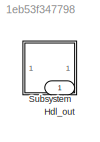
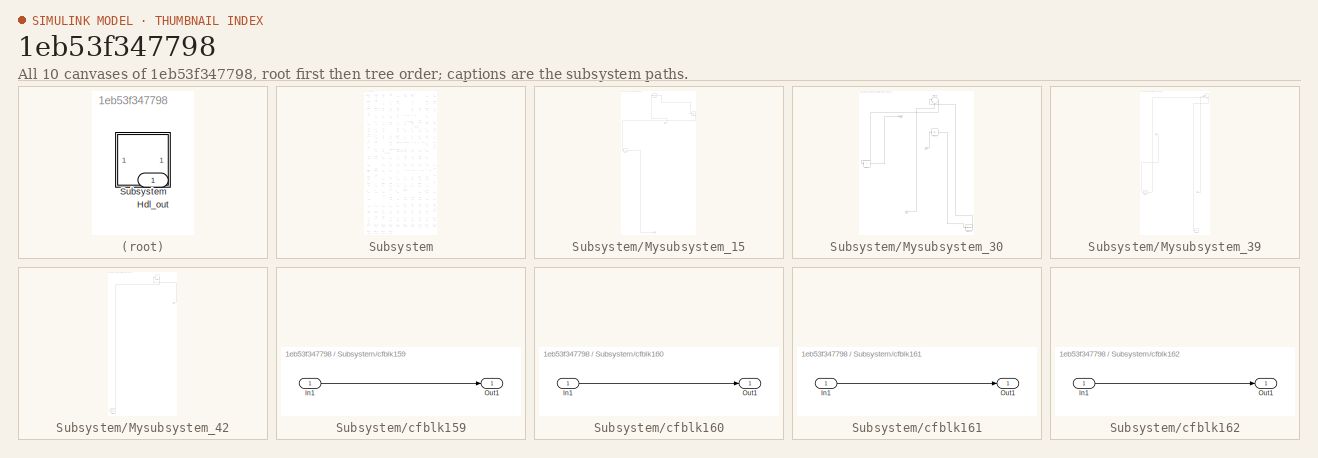
[diagram: thumbnail index - all 10 canvases of the model, root first then tree order]
MODEL slx_1eb53f347798
KIND model
CONFIG AbsTol = auto
CONFIG EnableMultiTasking = off
CONFIG FixedStep = auto
CONFIG MaxStep = auto
CONFIG MinStep = auto
CONFIG RelTol = 1e-3
CONFIG SampleTimeConstraint = Unconstrained
CONFIG SolverName = VariableStepAuto
CONFIG StartTime = 0.0
CONFIG StopTime = 10.0
BLOCK [Outport] Hdl_out
  OutDataTypeStr = uint8
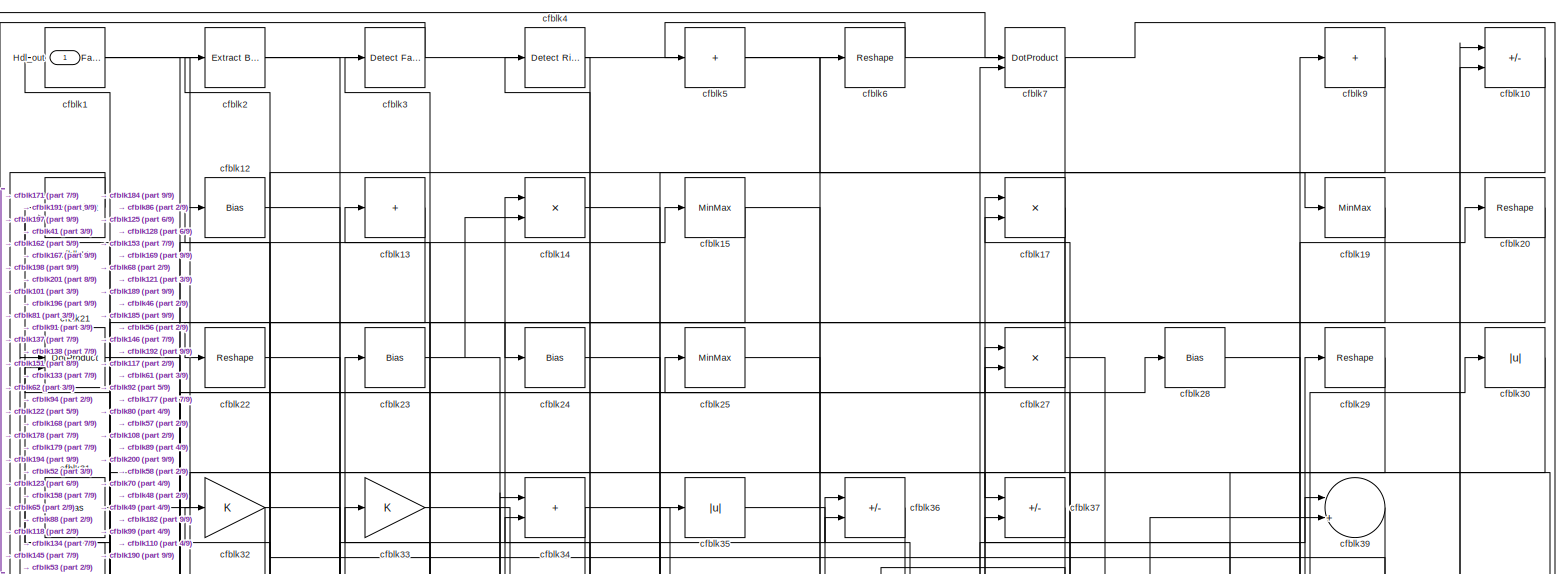
[diagram: Subsystem - part 1/9, full width, top band]
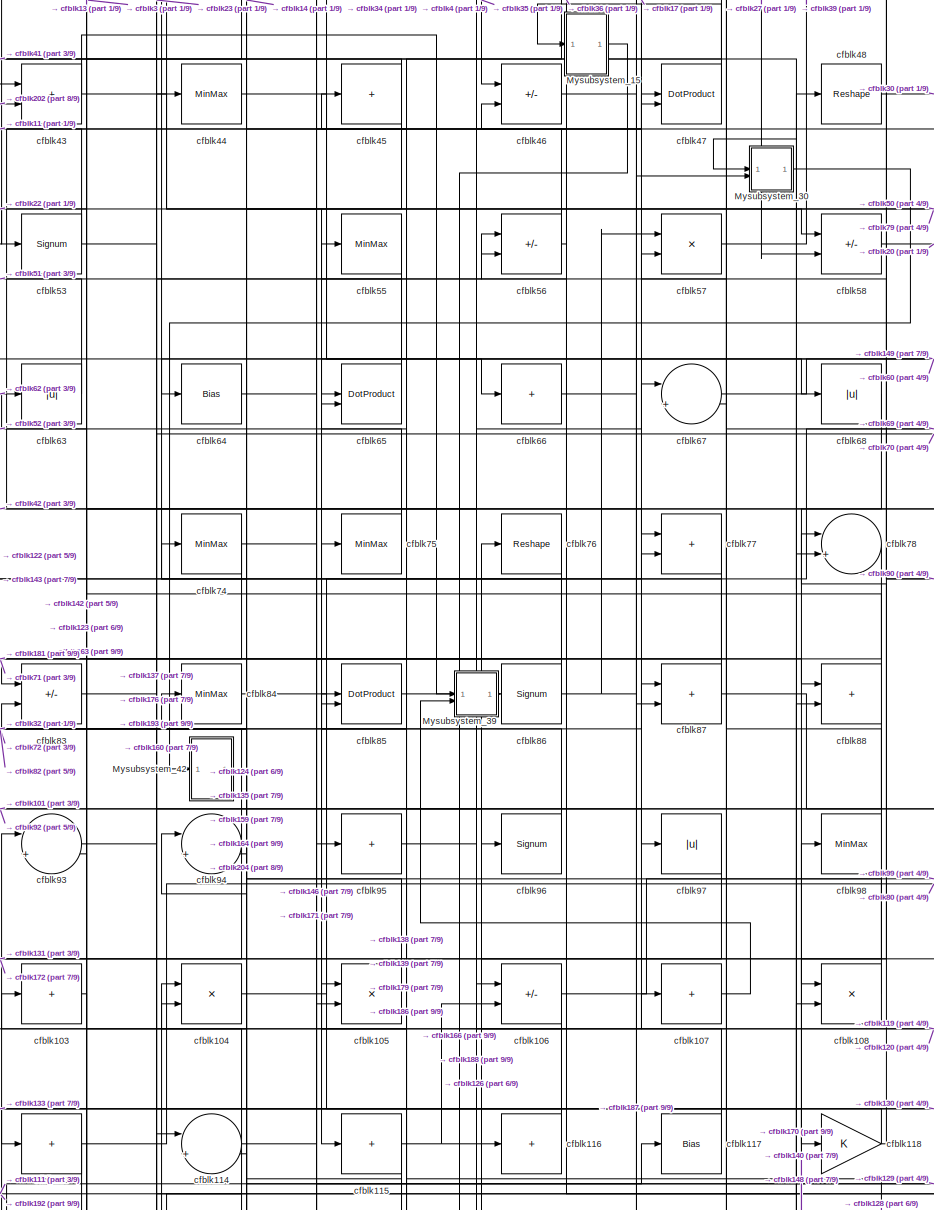
[diagram: Subsystem - part 2/9, central region]
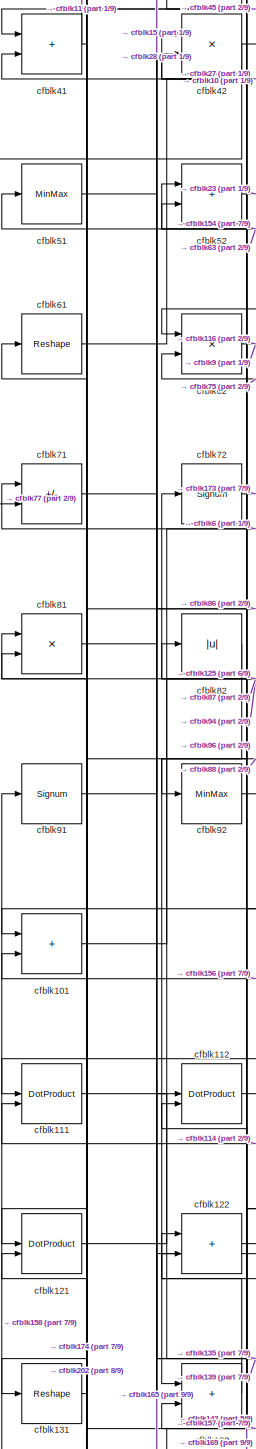
[diagram: Subsystem - part 3/9, middle left region]
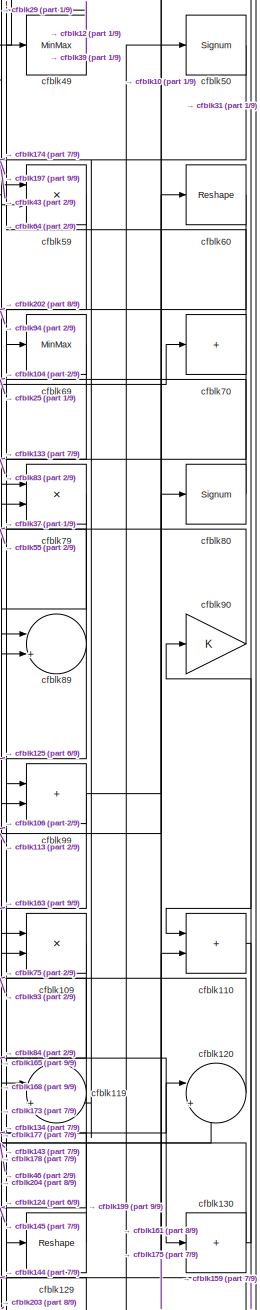
[diagram: Subsystem - part 4/9, middle right region]
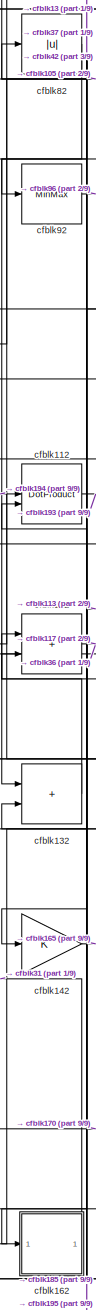
[diagram: Subsystem - part 5/9, middle left region]
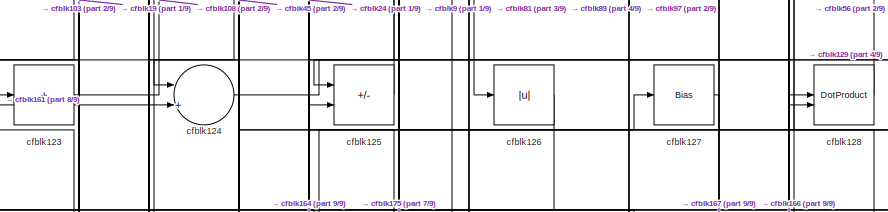
[diagram: Subsystem - part 6/9, central region]
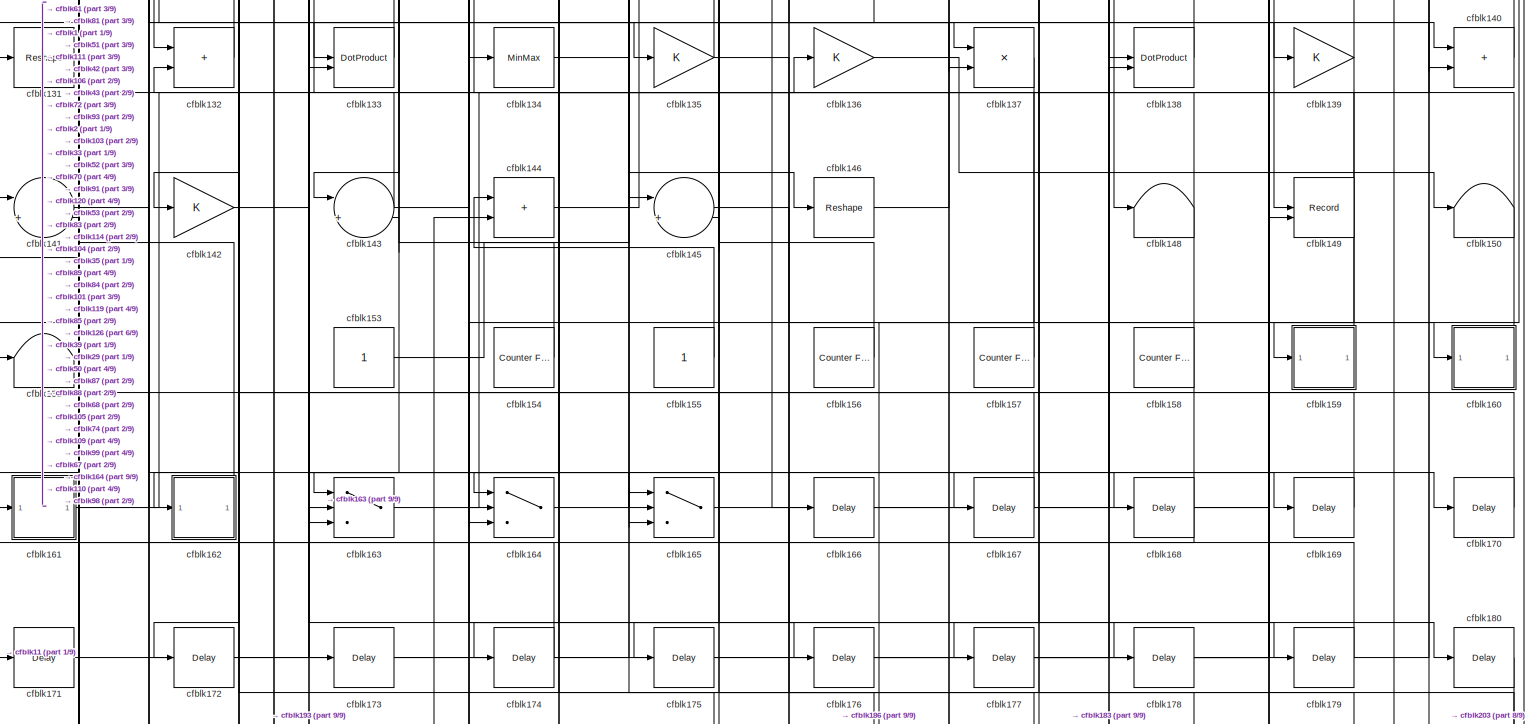
[diagram: Subsystem - part 7/9, full width, bottom band]
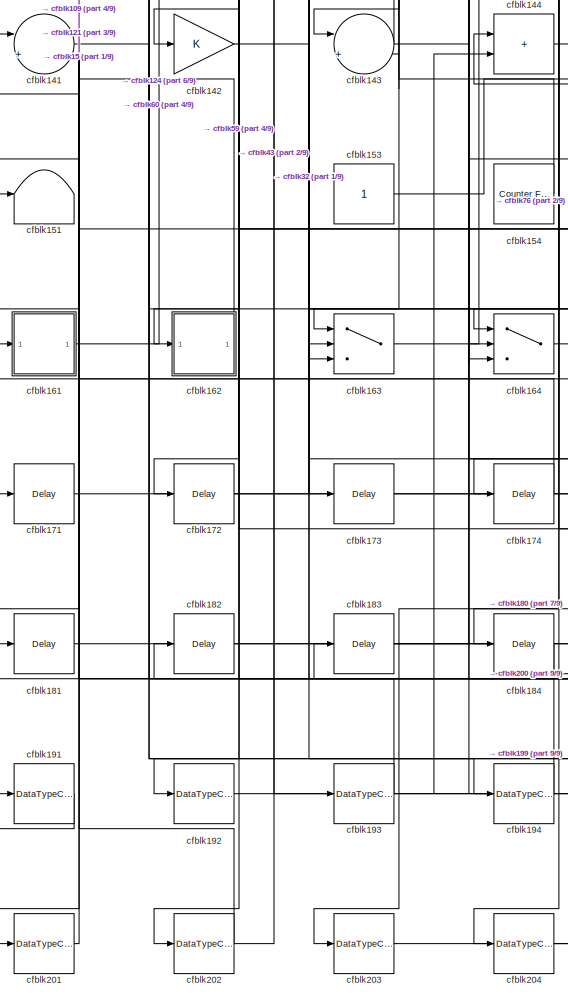
[diagram: Subsystem - part 8/9, bottom left region]
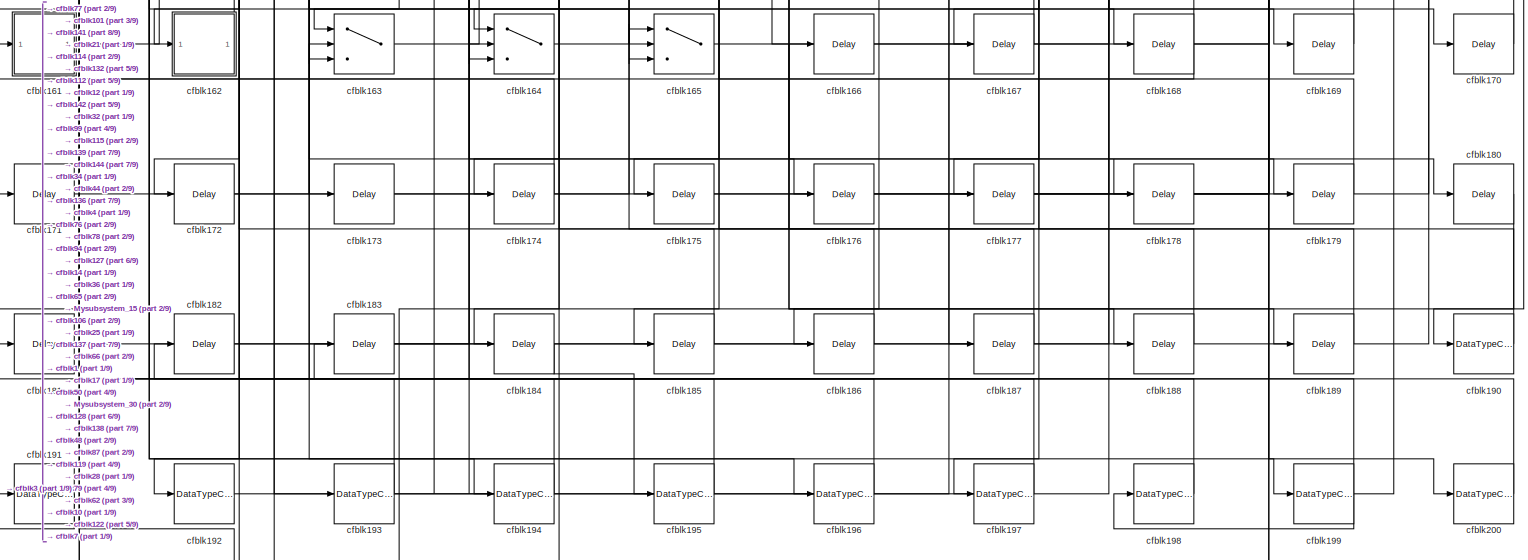
[diagram: Subsystem - part 9/9, full width, bottom band]
BLOCK [SubSystem] Subsystem
BLOCK [Outport] Subsystem/Hdl_out
  OutDataTypeStr = uint8
BLOCK [SubSystem] Subsystem/Mysubsystem_15
  RTWFcnName = Mysubsystem_15
  RTWFcnNameOpts = User specified
  RTWFileNameOpts = Use function name
  RTWSystemCode = Reusable function
  TreatAsAtomicUnit = on
BLOCK [Inport] Subsystem/Mysubsystem_15/In1
BLOCK [Outport] Subsystem/Mysubsystem_15/Out1
BLOCK [Reshape] Subsystem/Mysubsystem_15/cfblk16
BLOCK [Bias] Subsystem/Mysubsystem_15/cfblk40
  Bias = 0.0
  SaturateOnIntegerOverflow = off
BLOCK [Sum] Subsystem/Mysubsystem_15/cfblk73
  IconShape = rectangular
  Inputs = +
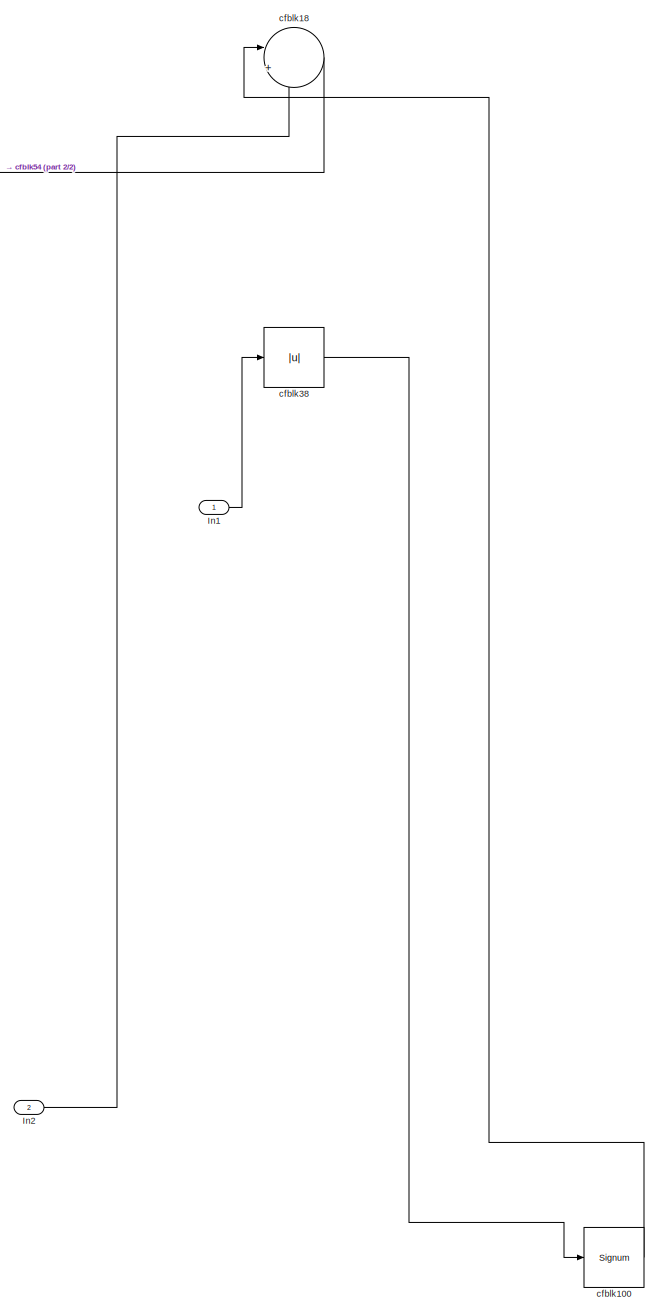
[diagram: Subsystem/Mysubsystem_30 - part 1/2, right side, full height]
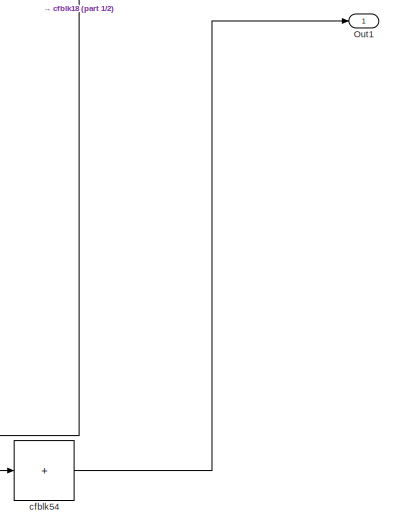
[diagram: Subsystem/Mysubsystem_30 - part 2/2, middle left region]
BLOCK [SubSystem] Subsystem/Mysubsystem_30
  RTWFcnName = Mysubsystem_30
  RTWFcnNameOpts = User specified
  RTWFileNameOpts = Use function name
  RTWSystemCode = Reusable function
  TreatAsAtomicUnit = on
BLOCK [Inport] Subsystem/Mysubsystem_30/In1
BLOCK [Inport] Subsystem/Mysubsystem_30/In2
  Port = 2
BLOCK [Outport] Subsystem/Mysubsystem_30/Out1
BLOCK [Signum] Subsystem/Mysubsystem_30/cfblk100
BLOCK [Sum] Subsystem/Mysubsystem_30/cfblk18
  Inputs = |++
BLOCK [Abs] Subsystem/Mysubsystem_30/cfblk38
  SaturateOnIntegerOverflow = off
BLOCK [Sum] Subsystem/Mysubsystem_30/cfblk54
  IconShape = rectangular
  Inputs = +
BLOCK [SubSystem] Subsystem/Mysubsystem_39
  RTWFcnName = Mysubsystem_39
  RTWFcnNameOpts = User specified
  RTWFileNameOpts = Use function name
  RTWSystemCode = Reusable function
  TreatAsAtomicUnit = on
BLOCK [Inport] Subsystem/Mysubsystem_39/In1
BLOCK [Inport] Subsystem/Mysubsystem_39/In2
  Port = 2
BLOCK [Abs] Subsystem/Mysubsystem_39/cfblk102
  SaturateOnIntegerOverflow = off
BLOCK [Display] Subsystem/Mysubsystem_39/cfblk147
  Decimation = 1
BLOCK [Sum] Subsystem/Mysubsystem_39/cfblk8
  IconShape = rectangular
BLOCK [SubSystem] Subsystem/Mysubsystem_42
  RTWFcnName = Mysubsystem_42
  RTWFcnNameOpts = User specified
  RTWFileNameOpts = Use function name
  RTWSystemCode = Reusable function
  TreatAsAtomicUnit = on
BLOCK [Inport] Subsystem/Mysubsystem_42/In1
BLOCK [Scope] Subsystem/Mysubsystem_42/cfblk152
  Floating = off
  NumInputPorts = 1
  ScopeSpecificationString = Simulink.scopes.TimeScopeBlockCfg('CurrentConfiguration', extmgr.ConfigurationSet(extmgr.Configuration('Core','General UI',true),extmgr.Configuration('Core','Source UI',true),extmgr.Configuration('Sources','WiredSimulink',true,'DataLoggingVariableName','ScopeData2','DataLoggingSaveFormat','Array','DataLoggingLimitDataPoints',true,'DataLoggingDecimation','1'),extmgr.Configuration('Visuals','Time Do...<+868ch>
BLOCK [Sum] Subsystem/Mysubsystem_42/cfblk26
  IconShape = rectangular
  Inputs = +
BLOCK [Reference] Subsystem/cfblk1  REF=hdlsllib/Logic and Bit
Operations/Detect Fall
Nonpositive
  SourceBlock = hdlsllib/Logic and Bit\nOperations/Detect Fall\nNonpositive
  SourceType = Detect Fall Nonpositive
BLOCK [Sum] Subsystem/cfblk10
  IconShape = rectangular
  Inputs = +-
  OutDataTypeStr = uint8
BLOCK [Sum] Subsystem/cfblk101
  IconShape = rectangular
  OutDataTypeStr = uint8
BLOCK [Sum] Subsystem/cfblk103
  IconShape = rectangular
  Inputs = +
  OutDataTypeStr = uint8
BLOCK [Product] Subsystem/cfblk104
  Inputs = */
  OutDataTypeStr = uint8
  RndMeth = Zero
  SaturateOnIntegerOverflow = on
BLOCK [Product] Subsystem/cfblk105
  Inputs = */
  OutDataTypeStr = uint8
  RndMeth = Zero
  SaturateOnIntegerOverflow = on
BLOCK [Sum] Subsystem/cfblk106
  IconShape = rectangular
  Inputs = +-
  OutDataTypeStr = uint8
BLOCK [Sum] Subsystem/cfblk107
  IconShape = rectangular
  Inputs = +
  OutDataTypeStr = uint8
BLOCK [Product] Subsystem/cfblk108
  Inputs = */
  OutDataTypeStr = uint8
  RndMeth = Zero
  SaturateOnIntegerOverflow = on
BLOCK [Product] Subsystem/cfblk109
  Inputs = */
  OutDataTypeStr = uint8
  RndMeth = Zero
  SaturateOnIntegerOverflow = on
BLOCK [DotProduct] Subsystem/cfblk11
  OutDataTypeStr = uint8
BLOCK [Sum] Subsystem/cfblk110
  IconShape = rectangular
  OutDataTypeStr = uint8
BLOCK [DotProduct] Subsystem/cfblk111
  OutDataTypeStr = uint8
BLOCK [DotProduct] Subsystem/cfblk112
  OutDataTypeStr = uint8
BLOCK [Sum] Subsystem/cfblk113
  IconShape = rectangular
  Inputs = +
  OutDataTypeStr = uint8
BLOCK [Sum] Subsystem/cfblk114
  Inputs = |++
  OutDataTypeStr = uint8
BLOCK [Sum] Subsystem/cfblk115
  IconShape = rectangular
  Inputs = +
  OutDataTypeStr = uint8
BLOCK [Sum] Subsystem/cfblk116
  IconShape = rectangular
  Inputs = +
  OutDataTypeStr = uint8
BLOCK [Bias] Subsystem/cfblk117
  Bias = 0.0
  SaturateOnIntegerOverflow = off
BLOCK [Gain] Subsystem/cfblk118
  OutDataTypeStr = uint8
BLOCK [Sum] Subsystem/cfblk119
  Inputs = |++
  OutDataTypeStr = uint8
BLOCK [Bias] Subsystem/cfblk12
  Bias = 0.0
  SaturateOnIntegerOverflow = off
BLOCK [Sum] Subsystem/cfblk120
  Inputs = |++
  OutDataTypeStr = uint8
BLOCK [DotProduct] Subsystem/cfblk121
  OutDataTypeStr = uint8
BLOCK [Sum] Subsystem/cfblk122
  IconShape = rectangular
  OutDataTypeStr = uint8
BLOCK [Sum] Subsystem/cfblk123
  IconShape = rectangular
  Inputs = +
  OutDataTypeStr = uint8
BLOCK [Sum] Subsystem/cfblk124
  Inputs = |++
  OutDataTypeStr = uint8
BLOCK [Sum] Subsystem/cfblk125
  IconShape = rectangular
  Inputs = +-
  OutDataTypeStr = uint8
BLOCK [Abs] Subsystem/cfblk126
  OutDataTypeStr = uint8
  SaturateOnIntegerOverflow = off
BLOCK [Bias] Subsystem/cfblk127
  Bias = 0.0
  SaturateOnIntegerOverflow = off
BLOCK [DotProduct] Subsystem/cfblk128
  OutDataTypeStr = uint8
BLOCK [Reshape] Subsystem/cfblk129
BLOCK [Sum] Subsystem/cfblk13
  IconShape = rectangular
  Inputs = +
  OutDataTypeStr = uint8
BLOCK [Sum] Subsystem/cfblk130
  IconShape = rectangular
  Inputs = +
  OutDataTypeStr = uint8
BLOCK [Reshape] Subsystem/cfblk131
BLOCK [Sum] Subsystem/cfblk132
  IconShape = rectangular
  OutDataTypeStr = uint8
BLOCK [DotProduct] Subsystem/cfblk133
  OutDataTypeStr = uint8
BLOCK [MinMax] Subsystem/cfblk134
  OutDataTypeStr = uint8
BLOCK [Gain] Subsystem/cfblk135
  OutDataTypeStr = uint8
BLOCK [Gain] Subsystem/cfblk136
  OutDataTypeStr = uint8
BLOCK [Product] Subsystem/cfblk137
  Inputs = */
  OutDataTypeStr = uint8
  RndMeth = Zero
  SaturateOnIntegerOverflow = on
BLOCK [DotProduct] Subsystem/cfblk138
  OutDataTypeStr = uint8
BLOCK [Gain] Subsystem/cfblk139
  OutDataTypeStr = uint8
BLOCK [Product] Subsystem/cfblk14
  Inputs = */
  OutDataTypeStr = uint8
  RndMeth = Zero
  SaturateOnIntegerOverflow = on
BLOCK [Sum] Subsystem/cfblk140
  IconShape = rectangular
  OutDataTypeStr = uint8
BLOCK [Sum] Subsystem/cfblk141
  Inputs = |++
  OutDataTypeStr = uint8
BLOCK [Gain] Subsystem/cfblk142
  OutDataTypeStr = uint8
BLOCK [Sum] Subsystem/cfblk143
  Inputs = |++
  OutDataTypeStr = uint8
BLOCK [Sum] Subsystem/cfblk144
  IconShape = rectangular
  OutDataTypeStr = uint8
BLOCK [Sum] Subsystem/cfblk145
  Inputs = |++
  OutDataTypeStr = uint8
BLOCK [Reshape] Subsystem/cfblk146
BLOCK [Terminator] Subsystem/cfblk148
BLOCK [Record] Subsystem/cfblk149
  CompatibilityTag = XY
  FileSettingsInternal = {"entries":[{"content":{"excelSettings":{"content":{},"type":"Streamout.ExcelSettings"}},"type":"Streamout.FileSettingStorage","uuid":""}],"packageUris":["http:\/\/schema.mathworks.com\/mf0\/streamout_blocks\/R2020a"],"version":"1.0"}
  Layout = [1 1]
  SignalsInternal = {"entries":[{"content":{"signals":[{"content":{"blockPath":[],"dimensions":[1],"domain":"","lineColor":"#a2142f","plots":[1],"port":1,"signalID":45985,"signalName":"cfblk67"},"type":"RecordBlkView.Signal","uuid":""},{"content":{"blockPath":[],"dimensions":[1],"domain":"","lineColor":"#139fff","plots":[1],"port":2,"signalID":45988,"signalName":"cfblk87"},"type":"RecordBlkView.Signal","uuid":""}]},"...<+142ch>
  VisualizationBindings = {"xyplotplugin":{"info":[{"series":[{"bindingParametersList":[{"parameter":"X-Axis","signalID":45985,"signalName":"cfblk67"},{"parameter":"Y-Axis","signalID":45988,"signalName":"cfblk87"}],"seriesID":36494}],"subplotID":1}]}}
  st = -1
BLOCK [MinMax] Subsystem/cfblk15
  OutDataTypeStr = uint8
BLOCK [Terminator] Subsystem/cfblk150
BLOCK [Terminator] Subsystem/cfblk151
BLOCK [Constant] Subsystem/cfblk153
  OutDataTypeStr = uint8
  SampleTime = -1
BLOCK [Reference] Subsystem/cfblk154  REF=hdlsllib/Sources/Counter
Free-Running
  SourceBlock = hdlsllib/Sources/Counter\nFree-Running
  SourceType = Counter Free-Running
BLOCK [Constant] Subsystem/cfblk155
  OutDataTypeStr = uint8
  SampleTime = -1
BLOCK [Reference] Subsystem/cfblk156  REF=hdlsllib/Sources/Counter
Free-Running
  SourceBlock = hdlsllib/Sources/Counter\nFree-Running
  SourceType = Counter Free-Running
BLOCK [Reference] Subsystem/cfblk157  REF=hdlsllib/Sources/Counter
Free-Running
  SourceBlock = hdlsllib/Sources/Counter\nFree-Running
  SourceType = Counter Free-Running
BLOCK [Reference] Subsystem/cfblk158  REF=hdlsllib/Sources/Counter
Free-Running
  SourceBlock = hdlsllib/Sources/Counter\nFree-Running
  SourceType = Counter Free-Running
BLOCK [SubSystem] Subsystem/cfblk159
  LibrarySourceBlock = hdlsllib/Ports &\nSubsystems/Subsystem
BLOCK [Inport] Subsystem/cfblk159/In1
BLOCK [Outport] Subsystem/cfblk159/Out1
BLOCK [SubSystem] Subsystem/cfblk160
  LibrarySourceBlock = hdlsllib/Ports &\nSubsystems/Subsystem
BLOCK [Inport] Subsystem/cfblk160/In1
BLOCK [Outport] Subsystem/cfblk160/Out1
BLOCK [SubSystem] Subsystem/cfblk161
  LibrarySourceBlock = hdlsllib/Ports &\nSubsystems/Subsystem
BLOCK [Inport] Subsystem/cfblk161/In1
BLOCK [Outport] Subsystem/cfblk161/Out1
BLOCK [SubSystem] Subsystem/cfblk162
  LibrarySourceBlock = hdlsllib/Ports &\nSubsystems/Subsystem
BLOCK [Inport] Subsystem/cfblk162/In1
BLOCK [Outport] Subsystem/cfblk162/Out1
BLOCK [Switch] Subsystem/cfblk163
  InputSameDT = off
  OutDataTypeStr = uint8
  SaturateOnIntegerOverflow = off
BLOCK [Switch] Subsystem/cfblk164
  InputSameDT = off
  OutDataTypeStr = uint8
  SaturateOnIntegerOverflow = off
BLOCK [Switch] Subsystem/cfblk165
  InputSameDT = off
  OutDataTypeStr = uint8
  SaturateOnIntegerOverflow = off
BLOCK [Delay] Subsystem/cfblk166
  InputPortMap = u0
  SampleTime = 1
BLOCK [Delay] Subsystem/cfblk167
  InputPortMap = u0
  SampleTime = 1
BLOCK [Delay] Subsystem/cfblk168
  InputPortMap = u0
  SampleTime = 1
BLOCK [Delay] Subsystem/cfblk169
  InputPortMap = u0
  SampleTime = 1
BLOCK [Product] Subsystem/cfblk17
  Inputs = */
  OutDataTypeStr = uint8
  RndMeth = Zero
  SaturateOnIntegerOverflow = on
BLOCK [Delay] Subsystem/cfblk170
  InputPortMap = u0
  SampleTime = 1
BLOCK [Delay] Subsystem/cfblk171
  InputPortMap = u0
  SampleTime = 1
BLOCK [Delay] Subsystem/cfblk172
  InputPortMap = u0
  SampleTime = 1
BLOCK [Delay] Subsystem/cfblk173
  InputPortMap = u0
  SampleTime = 1
BLOCK [Delay] Subsystem/cfblk174
  InputPortMap = u0
  SampleTime = 1
BLOCK [Delay] Subsystem/cfblk175
  InputPortMap = u0
  SampleTime = 1
BLOCK [Delay] Subsystem/cfblk176
  InputPortMap = u0
  SampleTime = 1
BLOCK [Delay] Subsystem/cfblk177
  InputPortMap = u0
  SampleTime = 1
BLOCK [Delay] Subsystem/cfblk178
  InputPortMap = u0
  SampleTime = 1
BLOCK [Delay] Subsystem/cfblk179
  InputPortMap = u0
  SampleTime = 1
BLOCK [Delay] Subsystem/cfblk180
  InputPortMap = u0
  SampleTime = 1
BLOCK [Delay] Subsystem/cfblk181
  InputPortMap = u0
  SampleTime = 1
BLOCK [Delay] Subsystem/cfblk182
  InputPortMap = u0
  SampleTime = 1
BLOCK [Delay] Subsystem/cfblk183
  InputPortMap = u0
  SampleTime = 1
BLOCK [Delay] Subsystem/cfblk184
  InputPortMap = u0
  SampleTime = 1
BLOCK [Delay] Subsystem/cfblk185
  InputPortMap = u0
  SampleTime = 1
BLOCK [Delay] Subsystem/cfblk186
  InputPortMap = u0
  SampleTime = 1
BLOCK [Delay] Subsystem/cfblk187
  InputPortMap = u0
  SampleTime = 1
BLOCK [Delay] Subsystem/cfblk188
  InputPortMap = u0
  SampleTime = 1
BLOCK [Delay] Subsystem/cfblk189
  InputPortMap = u0
  SampleTime = 1
BLOCK [MinMax] Subsystem/cfblk19
  OutDataTypeStr = uint8
BLOCK [DataTypeConversion] Subsystem/cfblk190
  OutDataTypeStr = uint8
  RndMeth = Floor
  SaturateOnIntegerOverflow = off
BLOCK [DataTypeConversion] Subsystem/cfblk191
  OutDataTypeStr = uint8
  RndMeth = Floor
  SaturateOnIntegerOverflow = off
BLOCK [DataTypeConversion] Subsystem/cfblk192
  OutDataTypeStr = uint8
  RndMeth = Floor
  SaturateOnIntegerOverflow = off
BLOCK [DataTypeConversion] Subsystem/cfblk193
  OutDataTypeStr = uint8
  RndMeth = Floor
  SaturateOnIntegerOverflow = off
BLOCK [DataTypeConversion] Subsystem/cfblk194
  OutDataTypeStr = uint8
  RndMeth = Floor
  SaturateOnIntegerOverflow = off
BLOCK [DataTypeConversion] Subsystem/cfblk195
  OutDataTypeStr = uint8
  RndMeth = Floor
  SaturateOnIntegerOverflow = off
BLOCK [DataTypeConversion] Subsystem/cfblk196
  OutDataTypeStr = uint8
  RndMeth = Floor
  SaturateOnIntegerOverflow = off
BLOCK [DataTypeConversion] Subsystem/cfblk197
  OutDataTypeStr = uint8
  RndMeth = Floor
  SaturateOnIntegerOverflow = off
BLOCK [DataTypeConversion] Subsystem/cfblk198
  OutDataTypeStr = uint8
  RndMeth = Floor
  SaturateOnIntegerOverflow = off
BLOCK [DataTypeConversion] Subsystem/cfblk199
  OutDataTypeStr = uint8
  RndMeth = Floor
  SaturateOnIntegerOverflow = off
BLOCK [Reference] Subsystem/cfblk2  REF=simulink/Logic and Bit
Operations/Extract Bits
  LibrarySourceBlock = hdlsllib/Logic and Bit\nOperations/Extract Bits
  SourceBlock = simulink/Logic and Bit\nOperations/Extract Bits
  SourceType = Extract Bits
BLOCK [Reshape] Subsystem/cfblk20
BLOCK [DataTypeConversion] Subsystem/cfblk200
  OutDataTypeStr = uint8
  RndMeth = Floor
  SaturateOnIntegerOverflow = off
BLOCK [DataTypeConversion] Subsystem/cfblk201
  OutDataTypeStr = uint8
  RndMeth = Floor
  SaturateOnIntegerOverflow = off
BLOCK [DataTypeConversion] Subsystem/cfblk202
  OutDataTypeStr = uint8
  RndMeth = Floor
  SaturateOnIntegerOverflow = off
BLOCK [DataTypeConversion] Subsystem/cfblk203
  OutDataTypeStr = uint8
  RndMeth = Floor
  SaturateOnIntegerOverflow = off
BLOCK [DataTypeConversion] Subsystem/cfblk204
  OutDataTypeStr = uint8
  RndMeth = Floor
  SaturateOnIntegerOverflow = off
BLOCK [DotProduct] Subsystem/cfblk21
  OutDataTypeStr = uint8
BLOCK [Reshape] Subsystem/cfblk22
BLOCK [Bias] Subsystem/cfblk23
  Bias = 0.0
  SaturateOnIntegerOverflow = off
BLOCK [Bias] Subsystem/cfblk24
  Bias = 0.0
  SaturateOnIntegerOverflow = off
BLOCK [MinMax] Subsystem/cfblk25
  OutDataTypeStr = uint8
BLOCK [Product] Subsystem/cfblk27
  Inputs = */
  OutDataTypeStr = uint8
  RndMeth = Zero
  SaturateOnIntegerOverflow = on
BLOCK [Bias] Subsystem/cfblk28
  Bias = 0.0
  SaturateOnIntegerOverflow = off
BLOCK [Reshape] Subsystem/cfblk29
BLOCK [Reference] Subsystem/cfblk3  REF=hdlsllib/Logic and Bit
Operations/Detect Fall
Negative
  SourceBlock = hdlsllib/Logic and Bit\nOperations/Detect Fall\nNegative
  SourceType = Detect Fall Negative
BLOCK [Abs] Subsystem/cfblk30
  OutDataTypeStr = uint8
  SaturateOnIntegerOverflow = off
BLOCK [Bias] Subsystem/cfblk31
  Bias = 0.0
  SaturateOnIntegerOverflow = off
BLOCK [Gain] Subsystem/cfblk32
  OutDataTypeStr = uint8
BLOCK [Gain] Subsystem/cfblk33
  OutDataTypeStr = uint8
BLOCK [Sum] Subsystem/cfblk34
  IconShape = rectangular
  OutDataTypeStr = uint8
BLOCK [Abs] Subsystem/cfblk35
  OutDataTypeStr = uint8
  SaturateOnIntegerOverflow = off
BLOCK [Sum] Subsystem/cfblk36
  IconShape = rectangular
  Inputs = +-
  OutDataTypeStr = uint8
BLOCK [Sum] Subsystem/cfblk37
  IconShape = rectangular
  Inputs = +-
  OutDataTypeStr = uint8
BLOCK [Sum] Subsystem/cfblk39
  Inputs = |++
  OutDataTypeStr = uint8
BLOCK [Reference] Subsystem/cfblk4  REF=hdlsllib/Logic and Bit
Operations/Detect Rise
Nonnegative
  SourceBlock = hdlsllib/Logic and Bit\nOperations/Detect Rise\nNonnegative
  SourceType = Detect Rise Nonnegative
BLOCK [Sum] Subsystem/cfblk41
  IconShape = rectangular
  OutDataTypeStr = uint8
BLOCK [Product] Subsystem/cfblk42
  Inputs = */
  OutDataTypeStr = uint8
  RndMeth = Zero
  SaturateOnIntegerOverflow = on
BLOCK [Sum] Subsystem/cfblk43
  IconShape = rectangular
  OutDataTypeStr = uint8
BLOCK [MinMax] Subsystem/cfblk44
  OutDataTypeStr = uint8
BLOCK [Sum] Subsystem/cfblk45
  IconShape = rectangular
  Inputs = +
  OutDataTypeStr = uint8
BLOCK [Sum] Subsystem/cfblk46
  IconShape = rectangular
  Inputs = +-
  OutDataTypeStr = uint8
BLOCK [DotProduct] Subsystem/cfblk47
  OutDataTypeStr = uint8
BLOCK [Reshape] Subsystem/cfblk48
BLOCK [MinMax] Subsystem/cfblk49
  OutDataTypeStr = uint8
BLOCK [Sum] Subsystem/cfblk5
  IconShape = rectangular
  Inputs = +
  OutDataTypeStr = uint8
BLOCK [Signum] Subsystem/cfblk50
BLOCK [MinMax] Subsystem/cfblk51
  OutDataTypeStr = uint8
BLOCK [Sum] Subsystem/cfblk52
  IconShape = rectangular
  OutDataTypeStr = uint8
BLOCK [Signum] Subsystem/cfblk53
BLOCK [MinMax] Subsystem/cfblk55
  OutDataTypeStr = uint8
BLOCK [Sum] Subsystem/cfblk56
  IconShape = rectangular
  Inputs = +-
  OutDataTypeStr = uint8
BLOCK [Product] Subsystem/cfblk57
  Inputs = */
  OutDataTypeStr = uint8
  RndMeth = Zero
  SaturateOnIntegerOverflow = on
BLOCK [Sum] Subsystem/cfblk58
  IconShape = rectangular
  Inputs = +-
  OutDataTypeStr = uint8
BLOCK [Product] Subsystem/cfblk59
  Inputs = */
  OutDataTypeStr = uint8
  RndMeth = Zero
  SaturateOnIntegerOverflow = on
BLOCK [Reshape] Subsystem/cfblk6
BLOCK [Reshape] Subsystem/cfblk60
BLOCK [Reshape] Subsystem/cfblk61
BLOCK [Product] Subsystem/cfblk62
  Inputs = */
  OutDataTypeStr = uint8
  RndMeth = Zero
  SaturateOnIntegerOverflow = on
BLOCK [Abs] Subsystem/cfblk63
  OutDataTypeStr = uint8
  SaturateOnIntegerOverflow = off
BLOCK [Bias] Subsystem/cfblk64
  Bias = 0.0
  SaturateOnIntegerOverflow = off
BLOCK [DotProduct] Subsystem/cfblk65
  OutDataTypeStr = uint8
BLOCK [Sum] Subsystem/cfblk66
  IconShape = rectangular
  Inputs = +
  OutDataTypeStr = uint8
BLOCK [Sum] Subsystem/cfblk67
  Inputs = |++
  OutDataTypeStr = uint8
BLOCK [Abs] Subsystem/cfblk68
  OutDataTypeStr = uint8
  SaturateOnIntegerOverflow = off
BLOCK [MinMax] Subsystem/cfblk69
  OutDataTypeStr = uint8
BLOCK [DotProduct] Subsystem/cfblk7
  OutDataTypeStr = uint8
BLOCK [Sum] Subsystem/cfblk70
  IconShape = rectangular
  Inputs = +
  OutDataTypeStr = uint8
BLOCK [Sum] Subsystem/cfblk71
  IconShape = rectangular
  Inputs = +-
  OutDataTypeStr = uint8
BLOCK [Signum] Subsystem/cfblk72
BLOCK [MinMax] Subsystem/cfblk74
  OutDataTypeStr = uint8
BLOCK [MinMax] Subsystem/cfblk75
  OutDataTypeStr = uint8
BLOCK [Reshape] Subsystem/cfblk76
BLOCK [Sum] Subsystem/cfblk77
  IconShape = rectangular
  OutDataTypeStr = uint8
BLOCK [Sum] Subsystem/cfblk78
  Inputs = |++
  OutDataTypeStr = uint8
BLOCK [Product] Subsystem/cfblk79
  Inputs = */
  OutDataTypeStr = uint8
  RndMeth = Zero
  SaturateOnIntegerOverflow = on
BLOCK [Signum] Subsystem/cfblk80
BLOCK [Product] Subsystem/cfblk81
  Inputs = */
  OutDataTypeStr = uint8
  RndMeth = Zero
  SaturateOnIntegerOverflow = on
BLOCK [Abs] Subsystem/cfblk82
  OutDataTypeStr = uint8
  SaturateOnIntegerOverflow = off
BLOCK [Sum] Subsystem/cfblk83
  IconShape = rectangular
  Inputs = +-
  OutDataTypeStr = uint8
BLOCK [MinMax] Subsystem/cfblk84
  OutDataTypeStr = uint8
BLOCK [DotProduct] Subsystem/cfblk85
  OutDataTypeStr = uint8
BLOCK [Signum] Subsystem/cfblk86
BLOCK [Sum] Subsystem/cfblk87
  IconShape = rectangular
  OutDataTypeStr = uint8
BLOCK [Sum] Subsystem/cfblk88
  IconShape = rectangular
  OutDataTypeStr = uint8
BLOCK [Sum] Subsystem/cfblk89
  Inputs = |++
  OutDataTypeStr = uint8
BLOCK [Sum] Subsystem/cfblk9
  IconShape = rectangular
  Inputs = +
  OutDataTypeStr = uint8
BLOCK [Gain] Subsystem/cfblk90
  OutDataTypeStr = uint8
BLOCK [Signum] Subsystem/cfblk91
BLOCK [MinMax] Subsystem/cfblk92
  OutDataTypeStr = uint8
BLOCK [Sum] Subsystem/cfblk93
  Inputs = |++
  OutDataTypeStr = uint8
BLOCK [Sum] Subsystem/cfblk94
  Inputs = |++
  OutDataTypeStr = uint8
BLOCK [Sum] Subsystem/cfblk95
  IconShape = rectangular
  Inputs = +
  OutDataTypeStr = uint8
BLOCK [Signum] Subsystem/cfblk96
BLOCK [Abs] Subsystem/cfblk97
  OutDataTypeStr = uint8
  SaturateOnIntegerOverflow = off
BLOCK [MinMax] Subsystem/cfblk98
  OutDataTypeStr = uint8
BLOCK [Sum] Subsystem/cfblk99
  IconShape = rectangular
  OutDataTypeStr = uint8
LINE Subsystem/Mysubsystem_15/In1:1 -> Subsystem/Mysubsystem_15/cfblk16:1
LINE Subsystem/Mysubsystem_15/cfblk16:1 -> Subsystem/Mysubsystem_15/cfblk40:1
LINE Subsystem/Mysubsystem_15/cfblk40:1 -> Subsystem/Mysubsystem_15/cfblk73:1
LINE Subsystem/Mysubsystem_15/cfblk73:1 -> Subsystem/Mysubsystem_15/Out1:1
LINE Subsystem/Mysubsystem_15:1 -> Subsystem/cfblk166:1
LINE Subsystem/Mysubsystem_30/In1:1 -> Subsystem/Mysubsystem_30/cfblk38:1
LINE Subsystem/Mysubsystem_30/In2:1 -> Subsystem/Mysubsystem_30/cfblk18:2
LINE Subsystem/Mysubsystem_30/cfblk100:1 -> Subsystem/Mysubsystem_30/cfblk18:1
LINE Subsystem/Mysubsystem_30/cfblk18:1 -> Subsystem/Mysubsystem_30/cfblk54:1
LINE Subsystem/Mysubsystem_30/cfblk38:1 -> Subsystem/Mysubsystem_30/cfblk100:1
LINE Subsystem/Mysubsystem_30/cfblk54:1 -> Subsystem/Mysubsystem_30/Out1:1
LINE Subsystem/Mysubsystem_30:1 -> Subsystem/Mysubsystem_42:1
LINE Subsystem/Mysubsystem_39/In1:1 -> Subsystem/Mysubsystem_39/cfblk102:1
LINE Subsystem/Mysubsystem_39/In2:1 -> Subsystem/Mysubsystem_39/cfblk8:2
LINE Subsystem/Mysubsystem_39/cfblk102:1 -> Subsystem/Mysubsystem_39/cfblk8:1
LINE Subsystem/Mysubsystem_39/cfblk8:1 -> Subsystem/Mysubsystem_39/cfblk147:1
LINE Subsystem/Mysubsystem_42/In1:1 -> Subsystem/Mysubsystem_42/cfblk26:1
LINE Subsystem/Mysubsystem_42/cfblk26:1 -> Subsystem/Mysubsystem_42/cfblk152:1
NET Subsystem/cfblk101:1 -> Subsystem/cfblk165:3, Subsystem/cfblk28:1, Subsystem/cfblk87:1
LINE Subsystem/cfblk103:1 -> Subsystem/cfblk143:1
NET Subsystem/cfblk104:1 -> Subsystem/cfblk140:2, Subsystem/cfblk69:1
LINE Subsystem/cfblk105:1 -> Subsystem/cfblk82:1
NET Subsystem/cfblk106:1 -> Subsystem/cfblk133:2, Subsystem/cfblk99:1
LINE Subsystem/cfblk107:1 -> Subsystem/Mysubsystem_39:2
LINE Subsystem/cfblk108:1 -> Subsystem/cfblk83:2
LINE Subsystem/cfblk109:1 -> Subsystem/cfblk161:1
LINE Subsystem/cfblk10:1 -> Subsystem/cfblk62:1
LINE Subsystem/cfblk110:1 -> Subsystem/cfblk159:1
LINE Subsystem/cfblk111:1 -> Subsystem/cfblk139:1
LINE Subsystem/cfblk112:1 -> Subsystem/cfblk193:1
NET Subsystem/cfblk113:1 -> Subsystem/cfblk142:1, Subsystem/cfblk80:1
NET Subsystem/cfblk114:1 -> Subsystem/cfblk111:2, Subsystem/cfblk192:1, Subsystem/cfblk47:1, Subsystem/cfblk63:1
NET Subsystem/cfblk115:1 -> Subsystem/cfblk106:2, Subsystem/cfblk107:1, Subsystem/cfblk164:2
LINE Subsystem/cfblk116:1 -> Subsystem/cfblk76:1
LINE Subsystem/cfblk117:1 -> Subsystem/cfblk17:1
NET Subsystem/cfblk118:1 -> Subsystem/cfblk113:1, Subsystem/cfblk78:1
NET Subsystem/cfblk119:1 -> Subsystem/cfblk145:2, Subsystem/cfblk93:2
LINE Subsystem/cfblk11:1 -> Subsystem/cfblk171:1
LINE Subsystem/cfblk120:1 -> Subsystem/cfblk75:1
LINE Subsystem/cfblk121:1 -> Subsystem/cfblk6:1
NET Subsystem/cfblk122:1 -> Subsystem/cfblk117:1, Subsystem/cfblk36:2
NET Subsystem/cfblk123:1 -> Subsystem/cfblk103:1, Subsystem/cfblk108:2
LINE Subsystem/cfblk124:1 -> Subsystem/cfblk129:1
LINE Subsystem/cfblk125:1 -> Subsystem/cfblk81:1
LINE Subsystem/cfblk126:1 -> Subsystem/cfblk175:1
LINE Subsystem/cfblk127:1 -> Subsystem/cfblk167:1
NET Subsystem/cfblk128:1 -> Subsystem/cfblk45:1, Subsystem/cfblk56:2
LINE Subsystem/cfblk129:1 -> Subsystem/cfblk104:2
LINE Subsystem/cfblk12:1 -> Subsystem/cfblk194:1
NET Subsystem/cfblk130:1 -> Subsystem/cfblk46:2, Subsystem/cfblk90:1
LINE Subsystem/cfblk131:1 -> Subsystem/cfblk71:1
LINE Subsystem/cfblk132:1 -> Subsystem/cfblk122:1
LINE Subsystem/cfblk133:1 -> Subsystem/cfblk2:1
LINE Subsystem/cfblk134:1 -> Subsystem/cfblk120:1
NET Subsystem/cfblk135:1 -> Subsystem/cfblk160:1, Subsystem/cfblk84:1
LINE Subsystem/cfblk136:1 -> Subsystem/cfblk150:1
LINE Subsystem/cfblk137:1 -> Subsystem/cfblk186:1
NET Subsystem/cfblk138:1 -> Subsystem/cfblk105:1, Subsystem/cfblk74:1
NET Subsystem/cfblk139:1 -> Subsystem/cfblk164:3, Subsystem/cfblk85:1
LINE Subsystem/cfblk13:1 -> Subsystem/cfblk162:1
LINE Subsystem/cfblk140:1 -> Subsystem/cfblk98:1
LINE Subsystem/cfblk141:1 -> Subsystem/cfblk199:1
NET Subsystem/cfblk142:1 -> Subsystem/cfblk165:2, Subsystem/cfblk42:1
NET Subsystem/cfblk143:1 -> Subsystem/cfblk120:2, Subsystem/cfblk93:1
LINE Subsystem/cfblk144:1 -> Subsystem/cfblk89:1
LINE Subsystem/cfblk145:1 -> Subsystem/cfblk180:1
LINE Subsystem/cfblk146:1 -> Subsystem/cfblk39:1
NET Subsystem/cfblk14:1 -> Subsystem/cfblk169:1, Subsystem/cfblk88:1
LINE Subsystem/cfblk153:1 -> Subsystem/cfblk35:1
LINE Subsystem/cfblk154:1 -> Subsystem/cfblk52:1
LINE Subsystem/cfblk155:1 -> Subsystem/cfblk144:1
LINE Subsystem/cfblk156:1 -> Subsystem/cfblk101:2
NET Subsystem/cfblk157:1 -> Subsystem/cfblk42:2, Subsystem/cfblk61:1
NET Subsystem/cfblk158:1 -> Subsystem/cfblk33:1, Subsystem/cfblk91:1
LINE Subsystem/cfblk159/In1:1 -> Subsystem/cfblk159/Out1:1
LINE Subsystem/cfblk159:1 -> Subsystem/cfblk114:2
NET Subsystem/cfblk15:1 -> Subsystem/cfblk201:1, Subsystem/cfblk37:1
LINE Subsystem/cfblk160/In1:1 -> Subsystem/cfblk160/Out1:1
LINE Subsystem/cfblk160:1 -> Subsystem/cfblk104:1
LINE Subsystem/cfblk161/In1:1 -> Subsystem/cfblk161/Out1:1
NET Subsystem/cfblk161:1 -> Subsystem/cfblk124:2, Subsystem/cfblk60:1
LINE Subsystem/cfblk162/In1:1 -> Subsystem/cfblk162/Out1:1
LINE Subsystem/cfblk162:1 -> Subsystem/cfblk31:1
LINE Subsystem/cfblk163:1 -> Subsystem/cfblk136:1
LINE Subsystem/cfblk164:1 -> Subsystem/cfblk127:1
NET Subsystem/cfblk165:1 -> Subsystem/cfblk119:1, Subsystem/cfblk188:1
LINE Subsystem/cfblk166:1 -> Subsystem/cfblk128:1
LINE Subsystem/cfblk167:1 -> Subsystem/cfblk1:1
LINE Subsystem/cfblk168:1 -> Subsystem/cfblk79:1
LINE Subsystem/cfblk169:1 -> Subsystem/cfblk62:2
LINE Subsystem/cfblk170:1 -> Subsystem/cfblk122:2
LINE Subsystem/cfblk171:1 -> Subsystem/cfblk105:2
LINE Subsystem/cfblk172:1 -> Subsystem/cfblk43:1
LINE Subsystem/cfblk173:1 -> Subsystem/cfblk109:1
LINE Subsystem/cfblk174:1 -> Subsystem/cfblk81:2
LINE Subsystem/cfblk175:1 -> Subsystem/cfblk110:2
LINE Subsystem/cfblk176:1 -> Subsystem/cfblk88:2
LINE Subsystem/cfblk177:1 -> Subsystem/cfblk89:2
LINE Subsystem/cfblk178:1 -> Subsystem/cfblk99:2
LINE Subsystem/cfblk179:1 -> Subsystem/cfblk85:2
LINE Subsystem/cfblk17:1 -> Subsystem/cfblk22:1
LINE Subsystem/cfblk180:1 -> Subsystem/cfblk203:1
LINE Subsystem/cfblk181:1 -> Subsystem/cfblk114:1
LINE Subsystem/cfblk182:1 -> Subsystem/cfblk10:2
LINE Subsystem/cfblk183:1 -> Subsystem/cfblk138:2
LINE Subsystem/cfblk184:1 -> Subsystem/cfblk195:1
LINE Subsystem/cfblk185:1 -> Subsystem/cfblk132:2
LINE Subsystem/cfblk186:1 -> Subsystem/cfblk65:2
LINE Subsystem/cfblk187:1 -> Subsystem/cfblk94:1
LINE Subsystem/cfblk188:1 -> Subsystem/cfblk106:1
LINE Subsystem/cfblk189:1 -> Subsystem/cfblk17:2
LINE Subsystem/cfblk190:1 -> Subsystem/cfblk165:1
LINE Subsystem/cfblk191:1 -> Subsystem/cfblk7:1
LINE Subsystem/cfblk192:1 -> Subsystem/cfblk7:2
NET Subsystem/cfblk193:1 -> Subsystem/Mysubsystem_30:1, Subsystem/cfblk144:2, Subsystem/cfblk163:2, Subsystem/cfblk44:1, Subsystem/cfblk48:1
LINE Subsystem/cfblk194:1 -> Subsystem/cfblk112:1
LINE Subsystem/cfblk195:1 -> Subsystem/cfblk112:2
LINE Subsystem/cfblk196:1 -> Subsystem/cfblk34:1
LINE Subsystem/cfblk197:1 -> Subsystem/cfblk21:1
LINE Subsystem/cfblk198:1 -> Subsystem/cfblk21:2
NET Subsystem/cfblk199:1 -> Subsystem/cfblk182:1, Subsystem/cfblk183:1, Subsystem/cfblk198:1, Subsystem/cfblk50:1
LINE Subsystem/cfblk19:1 -> Subsystem/cfblk123:1
NET Subsystem/cfblk1:1 -> Subsystem/cfblk137:1, Subsystem/cfblk138:1
LINE Subsystem/cfblk200:1 -> Subsystem/cfblk141:1
LINE Subsystem/cfblk201:1 -> Subsystem/cfblk141:2
NET Subsystem/cfblk202:1 -> Subsystem/cfblk121:2, Subsystem/cfblk43:2
LINE Subsystem/cfblk203:1 -> Subsystem/cfblk59:1
LINE Subsystem/cfblk204:1 -> Subsystem/cfblk59:2
LINE Subsystem/cfblk20:1 -> Subsystem/cfblk24:1
LINE Subsystem/cfblk21:1 -> Subsystem/cfblk196:1
LINE Subsystem/cfblk22:1 -> Subsystem/cfblk58:1
NET Subsystem/cfblk23:1 -> Subsystem/cfblk118:1, Subsystem/cfblk14:2
LINE Subsystem/cfblk24:1 -> Subsystem/cfblk128:2
LINE Subsystem/cfblk25:1 -> Subsystem/cfblk189:1
NET Subsystem/cfblk27:1 -> Subsystem/Hdl_out:1, Subsystem/cfblk121:1, Subsystem/cfblk58:2
LINE Subsystem/cfblk28:1 -> Subsystem/cfblk200:1
LINE Subsystem/cfblk29:1 -> Subsystem/cfblk177:1
NET Subsystem/cfblk2:1 -> Subsystem/cfblk178:1, Subsystem/cfblk179:1
LINE Subsystem/cfblk30:1 -> Subsystem/cfblk108:1
LINE Subsystem/cfblk31:1 -> Subsystem/cfblk110:1
NET Subsystem/cfblk32:1 -> Subsystem/cfblk151:1, Subsystem/cfblk168:1
NET Subsystem/cfblk33:1 -> Subsystem/cfblk134:1, Subsystem/cfblk145:1
NET Subsystem/cfblk34:1 -> Subsystem/cfblk53:1, Subsystem/cfblk68:1
LINE Subsystem/cfblk35:1 -> Subsystem/cfblk46:1
LINE Subsystem/cfblk36:1 -> Subsystem/cfblk185:1
LINE Subsystem/cfblk37:1 -> Subsystem/cfblk92:1
LINE Subsystem/cfblk39:1 -> Subsystem/cfblk49:1
LINE Subsystem/cfblk3:1 -> Subsystem/cfblk191:1
NET Subsystem/cfblk41:1 -> Subsystem/cfblk111:1, Subsystem/cfblk11:1
NET Subsystem/cfblk42:1 -> Subsystem/cfblk71:2, Subsystem/cfblk77:1
NET Subsystem/cfblk43:1 -> Subsystem/Mysubsystem_39:1, Subsystem/cfblk79:2
LINE Subsystem/cfblk44:1 -> Subsystem/cfblk66:1
NET Subsystem/cfblk45:1 -> Subsystem/cfblk124:1, Subsystem/cfblk41:1, Subsystem/cfblk65:1
LINE Subsystem/cfblk46:1 -> Subsystem/cfblk87:2
LINE Subsystem/cfblk47:1 -> Subsystem/Mysubsystem_15:1
LINE Subsystem/cfblk48:1 -> Subsystem/cfblk30:1
LINE Subsystem/cfblk49:1 -> Subsystem/cfblk12:1
LINE Subsystem/cfblk4:1 -> Subsystem/cfblk184:1
NET Subsystem/cfblk50:1 -> Subsystem/cfblk119:2, Subsystem/cfblk174:1, Subsystem/cfblk197:1, Subsystem/cfblk64:1
LINE Subsystem/cfblk51:1 -> Subsystem/cfblk135:1
LINE Subsystem/cfblk52:1 -> Subsystem/cfblk23:1
NET Subsystem/cfblk53:1 -> Subsystem/cfblk11:2, Subsystem/cfblk176:1, Subsystem/cfblk97:1
LINE Subsystem/cfblk55:1 -> Subsystem/cfblk115:1
NET Subsystem/cfblk56:1 -> Subsystem/cfblk36:1, Subsystem/cfblk4:1
LINE Subsystem/cfblk57:1 -> Subsystem/cfblk39:2
LINE Subsystem/cfblk58:1 -> Subsystem/cfblk20:1
LINE Subsystem/cfblk59:1 -> Subsystem/cfblk202:1
LINE Subsystem/cfblk5:1 -> Subsystem/cfblk19:1
LINE Subsystem/cfblk60:1 -> Subsystem/cfblk94:2
LINE Subsystem/cfblk61:1 -> Subsystem/cfblk27:1
NET Subsystem/cfblk62:1 -> Subsystem/cfblk116:1, Subsystem/cfblk9:1
LINE Subsystem/cfblk63:1 -> Subsystem/cfblk51:1
LINE Subsystem/cfblk64:1 -> Subsystem/cfblk95:1
LINE Subsystem/cfblk65:1 -> Subsystem/cfblk13:1
LINE Subsystem/cfblk66:1 -> Subsystem/cfblk187:1
NET Subsystem/cfblk67:1 -> Subsystem/cfblk149:1, Subsystem/cfblk78:2
LINE Subsystem/cfblk68:1 -> Subsystem/cfblk148:1
LINE Subsystem/cfblk69:1 -> Subsystem/cfblk83:1
LINE Subsystem/cfblk6:1 -> Subsystem/cfblk5:1
NET Subsystem/cfblk70:1 -> Subsystem/cfblk133:1, Subsystem/cfblk29:1
LINE Subsystem/cfblk71:1 -> Subsystem/cfblk86:1
LINE Subsystem/cfblk72:1 -> Subsystem/cfblk173:1
NET Subsystem/cfblk74:1 -> Subsystem/cfblk143:2, Subsystem/cfblk146:1
LINE Subsystem/cfblk75:1 -> Subsystem/cfblk52:2
NET Subsystem/cfblk76:1 -> Subsystem/cfblk163:1, Subsystem/cfblk204:1
LINE Subsystem/cfblk77:1 -> Subsystem/cfblk181:1
LINE Subsystem/cfblk78:1 -> Subsystem/cfblk164:1
LINE Subsystem/cfblk79:1 -> Subsystem/cfblk109:2
LINE Subsystem/cfblk7:1 -> Subsystem/cfblk190:1
LINE Subsystem/cfblk80:1 -> Subsystem/cfblk25:1
LINE Subsystem/cfblk81:1 -> Subsystem/cfblk15:1
LINE Subsystem/cfblk82:1 -> Subsystem/cfblk132:1
NET Subsystem/cfblk83:1 -> Subsystem/cfblk137:2, Subsystem/cfblk56:1
LINE Subsystem/cfblk84:1 -> Subsystem/cfblk130:1
NET Subsystem/cfblk85:1 -> Subsystem/cfblk140:1, Subsystem/cfblk47:2
NET Subsystem/cfblk86:1 -> Subsystem/Mysubsystem_30:2, Subsystem/cfblk14:1, Subsystem/cfblk34:2, Subsystem/cfblk57:1
NET Subsystem/cfblk87:1 -> Subsystem/cfblk149:2, Subsystem/cfblk170:1, Subsystem/cfblk41:2
NET Subsystem/cfblk88:1 -> Subsystem/cfblk101:1, Subsystem/cfblk3:1
NET Subsystem/cfblk89:1 -> Subsystem/cfblk125:1, Subsystem/cfblk37:2
LINE Subsystem/cfblk90:1 -> Subsystem/cfblk55:1
LINE Subsystem/cfblk91:1 -> Subsystem/cfblk27:2
LINE Subsystem/cfblk92:1 -> Subsystem/cfblk96:1
LINE Subsystem/cfblk93:1 -> Subsystem/cfblk70:1
NET Subsystem/cfblk94:1 -> Subsystem/cfblk131:1, Subsystem/cfblk32:1
NET Subsystem/cfblk95:1 -> Subsystem/cfblk67:1, Subsystem/cfblk77:2
LINE Subsystem/cfblk96:1 -> Subsystem/cfblk72:1
LINE Subsystem/cfblk97:1 -> Subsystem/cfblk126:1
NET Subsystem/cfblk98:1 -> Subsystem/cfblk172:1, Subsystem/cfblk57:2, Subsystem/cfblk67:2
NET Subsystem/cfblk99:1 -> Subsystem/cfblk10:1, Subsystem/cfblk163:3
LINE Subsystem/cfblk9:1 -> Subsystem/cfblk125:2
note: NET lines group one-source signal fan-out (src -> all destinations, sorted); 1:1 wires keep LINE
